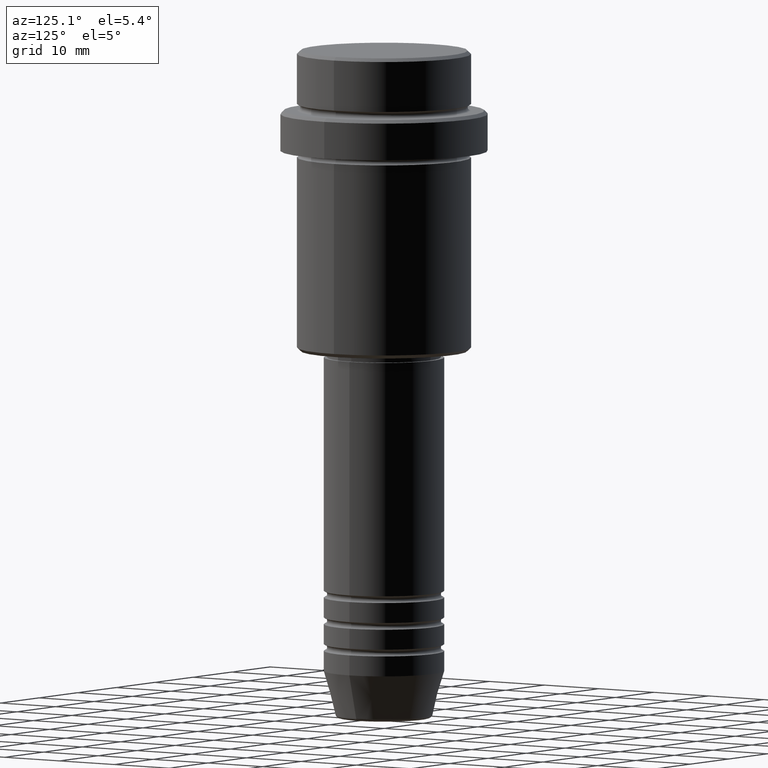
[diagram: clean part render]
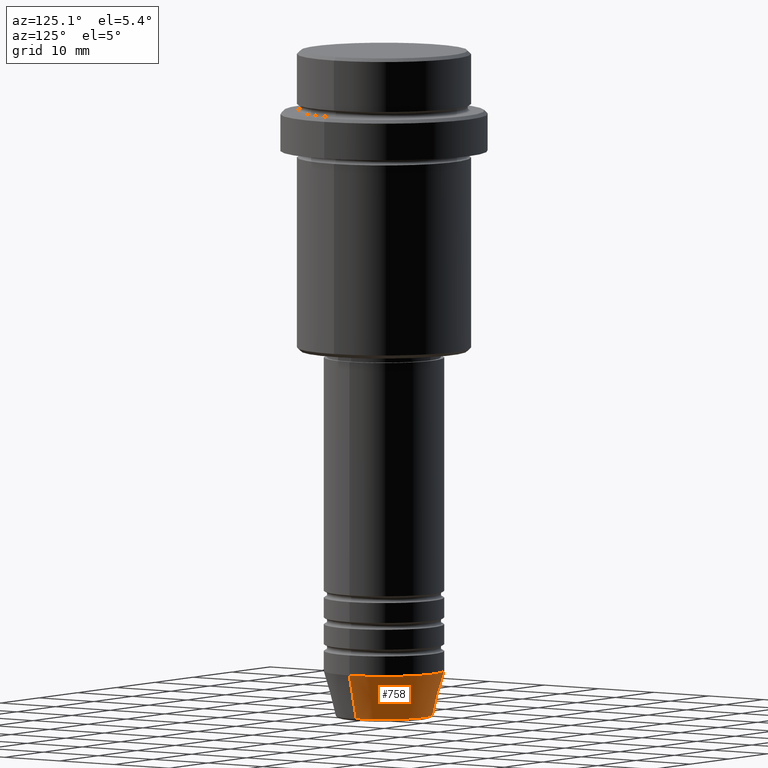
[diagram: same view with one face highlighted and labeled with its STEP entity id]
A machine part, auxiliary view. The second image highlights one B-rep face of the part: STEP entity #758.
In plain terms, the highlighted conical surface has half-angle 15 deg.
Its self-contained STEP definition (entity closure, byte-faithful):
#31 = DIRECTION ( 'NONE',  ( 0.2588190451025213501, 0.000000000000000000, 0.9659258262890680902 ) ) ;
#36 = VECTOR ( 'NONE', #426, 1000.000000000000000 ) ;
#47 = CARTESIAN_POINT ( 'NONE',  ( 9.000000000000000000, 0.000000000000000000, -93.00000000000000000 ) ) ;
#149 = AXIS2_PLACEMENT_3D ( 'NONE', #402, #986, #575 ) ;
#189 = VERTEX_POINT ( 'NONE', #350 ) ;
#294 = CARTESIAN_POINT ( 'NONE',  ( -7.223655072137189492, 9.934123627281765110E-16, -99.62940952255127058 ) ) ;
#322 = EDGE_CURVE ( 'NONE', #1259, #189, #851, .T. ) ;
#350 = CARTESIAN_POINT ( 'NONE',  ( -9.000000000000000000, 1.102182119232617714E-15, -93.00000000000000000 ) ) ;
#368 = ORIENTED_EDGE ( 'NONE', *, *, #322, .T. ) ;
#394 = CARTESIAN_POINT ( 'NONE',  ( 0.000000000000000000, 0.000000000000000000, -93.00000000000000000 ) ) ;
#402 = CARTESIAN_POINT ( 'NONE',  ( 0.000000000000000000, 0.000000000000000000, -99.62940952255127058 ) ) ;
#426 = DIRECTION ( 'NONE',  ( -0.2588190451025213501, 3.169619151431772337E-17, 0.9659258262890680902 ) ) ;
#434 = CARTESIAN_POINT ( 'NONE',  ( 0.000000000000000000, 0.000000000000000000, -93.00000000000000000 ) ) ;
#575 = DIRECTION ( 'NONE',  ( 1.000000000000000000, 0.000000000000000000, 0.000000000000000000 ) ) ;
#732 = VECTOR ( 'NONE', #31, 1000.000000000000000 ) ;
#736 = ORIENTED_EDGE ( 'NONE', *, *, #1098, .F. ) ;
#742 = CARTESIAN_POINT ( 'NONE',  ( 7.223655072137188604, 0.000000000000000000, -99.62940952255127058 ) ) ;
#753 = CONICAL_SURFACE ( 'NONE', #980, 9.000000000000000000, 0.2617993877991500740 ) ;
#757 = DIRECTION ( 'NONE',  ( -0.000000000000000000, -0.000000000000000000, 1.000000000000000000 ) ) ;
#758 = ADVANCED_FACE ( 'NONE', ( #1053 ), #753, .T. ) ;
#809 = ORIENTED_EDGE ( 'NONE', *, *, #965, .F. ) ;
#851 = LINE ( 'NONE', #970, #36 ) ;
#855 = DIRECTION ( 'NONE',  ( -0.000000000000000000, -0.000000000000000000, 1.000000000000000000 ) ) ;
#867 = CIRCLE ( 'NONE', #1369, 9.000000000000000000 ) ;
#873 = EDGE_CURVE ( 'NONE', #1252, #1259, #909, .T. ) ;
#900 = LINE ( 'NONE', #47, #732 ) ;
#909 = CIRCLE ( 'NONE', #149, 7.223655072137188604 ) ;
#919 = ORIENTED_EDGE ( 'NONE', *, *, #873, .T. ) ;
#965 = EDGE_CURVE ( 'NONE', #1306, #189, #867, .T. ) ;
#970 = CARTESIAN_POINT ( 'NONE',  ( -9.000000000000000000, 1.102182119232617714E-15, -93.00000000000000000 ) ) ;
#980 = AXIS2_PLACEMENT_3D ( 'NONE', #394, #855, #1269 ) ;
#986 = DIRECTION ( 'NONE',  ( -0.000000000000000000, -0.000000000000000000, 1.000000000000000000 ) ) ;
#1053 = FACE_OUTER_BOUND ( 'NONE', #1168, .T. ) ;
#1098 = EDGE_CURVE ( 'NONE', #1252, #1306, #900, .T. ) ;
#1168 = EDGE_LOOP ( 'NONE', ( #919, #368, #809, #736 ) ) ;
#1252 = VERTEX_POINT ( 'NONE', #742 ) ;
#1259 = VERTEX_POINT ( 'NONE', #294 ) ;
#1269 = DIRECTION ( 'NONE',  ( 1.000000000000000000, 0.000000000000000000, 0.000000000000000000 ) ) ;
#1306 = VERTEX_POINT ( 'NONE', #1389 ) ;
#1369 = AXIS2_PLACEMENT_3D ( 'NONE', #434, #757, #1411 ) ;
#1389 = CARTESIAN_POINT ( 'NONE',  ( 9.000000000000000000, 0.000000000000000000, -93.00000000000000000 ) ) ;
#1411 = DIRECTION ( 'NONE',  ( 1.000000000000000000, 0.000000000000000000, 0.000000000000000000 ) ) ;